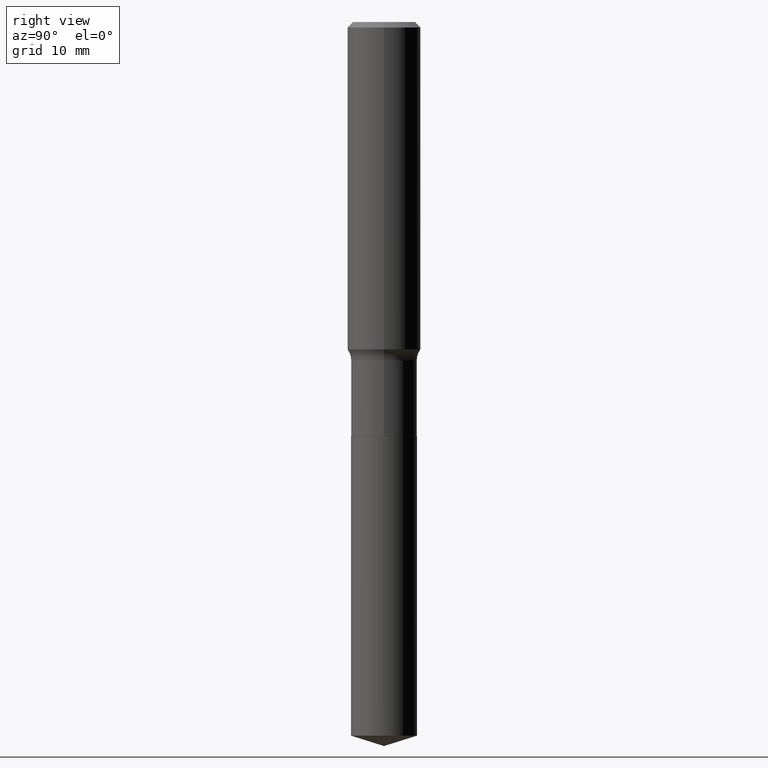
[diagram: clean part render]
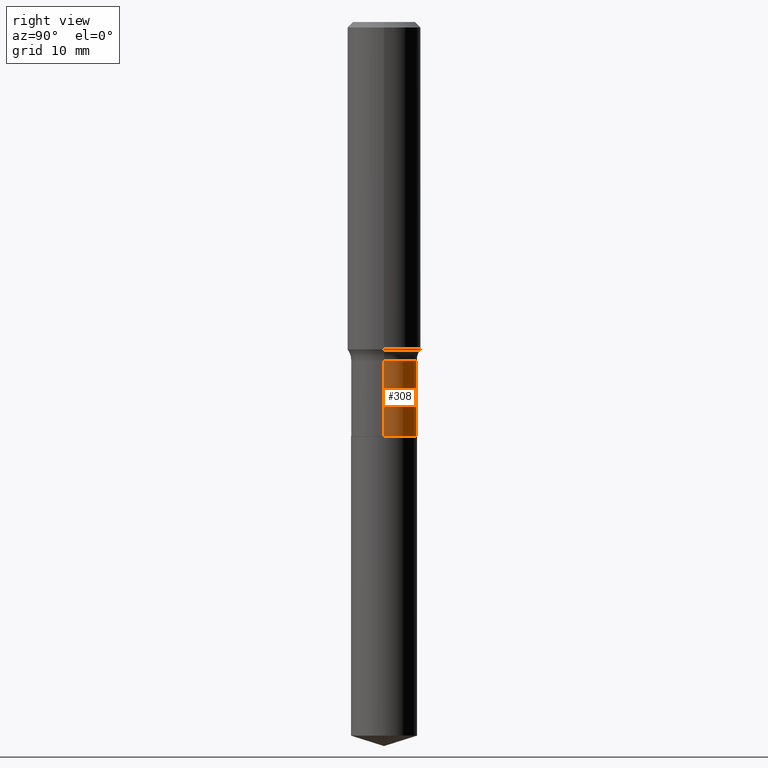
[diagram: same view with one face highlighted and labeled with its STEP entity id]
A machine part, right view. The second image highlights one B-rep face of the part: STEP entity #308.
In plain terms, the highlighted cylindrical surface (edge-blend (fillet) strip) has radius 3.6004 mm, axis along (-0, 0, 1).
Its self-contained STEP definition (entity closure, byte-faithful):
#6 = VERTEX_POINT ( 'NONE', #63 ) ;
#15 = AXIS2_PLACEMENT_3D ( 'NONE', #425, #279, #432 ) ;
#25 = DIRECTION ( 'NONE',  ( -2.445468806185136597E-29, 3.491481338843145583E-15, 1.000000000000000000 ) ) ;
#39 = CARTESIAN_POINT ( 'NONE',  ( 0.000000000000000000, 0.000000000000000000, 0.000000000000000000 ) ) ;
#63 = CARTESIAN_POINT ( 'NONE',  ( 0.1417499999999999594, -6.064703085570540056E-15, -1.453500000000000014 ) ) ;
#75 = DIRECTION ( 'NONE',  ( 1.000000000000000000, -6.982962677686266711E-15, 4.876176775795935793E-29 ) ) ;
#79 = ORIENTED_EDGE ( 'NONE', *, *, #430, .T. ) ;
#95 = VERTEX_POINT ( 'NONE', #256 ) ;
#109 = CIRCLE ( 'NONE', #338, 0.1417499999999999594 ) ;
#132 = LINE ( 'NONE', #275, #429 ) ;
#139 = EDGE_CURVE ( 'NONE', #6, #95, #109, .T. ) ;
#148 = ORIENTED_EDGE ( 'NONE', *, *, #139, .F. ) ;
#155 = DIRECTION ( 'NONE',  ( -2.445468806185136877E-29, 3.491481338843145188E-15, 1.000000000000000000 ) ) ;
#174 = EDGE_CURVE ( 'NONE', #414, #95, #413, .T. ) ;
#180 = DIRECTION ( 'NONE',  ( 1.000000000000000000, -6.982962677686268288E-15, 0.000000000000000000 ) ) ;
#256 = CARTESIAN_POINT ( 'NONE',  ( -0.1417499999999999594, -4.635912385965292401E-15, -1.453500000000000014 ) ) ;
#261 = CYLINDRICAL_SURFACE ( 'NONE', #424, 0.1417499999999999594 ) ;
#271 = FACE_OUTER_BOUND ( 'NONE', #455, .T. ) ;
#275 = CARTESIAN_POINT ( 'NONE',  ( 0.1417499999999999594, -9.898349595620280222E-16, 6.911980579690737389E-30 ) ) ;
#278 = CIRCLE ( 'NONE', #15, 0.1417499999999999594 ) ;
#279 = DIRECTION ( 'NONE',  ( -2.445468806185136597E-29, 3.491481338843145583E-15, 1.000000000000000000 ) ) ;
#308 = ADVANCED_FACE ( 'NONE', ( #271 ), #261, .T. ) ;
#338 = AXIS2_PLACEMENT_3D ( 'NONE', #410, #25, #180 ) ;
#341 = VECTOR ( 'NONE', #155, 39.37007874015748143 ) ;
#351 = CARTESIAN_POINT ( 'NONE',  ( -0.1417499999999999594, 1.007194327939941725E-15, -6.972590490436327745E-30 ) ) ;
#376 = VERTEX_POINT ( 'NONE', #462 ) ;
#387 = CARTESIAN_POINT ( 'NONE',  ( -0.1417499999999999594, -4.635912385965292401E-15, -1.779000000000000137 ) ) ;
#399 = EDGE_CURVE ( 'NONE', #376, #6, #132, .T. ) ;
#410 = CARTESIAN_POINT ( 'NONE',  ( 3.554488909790095658E-29, -5.074868126008511245E-15, -1.453500000000000014 ) ) ;
#413 = LINE ( 'NONE', #351, #341 ) ;
#414 = VERTEX_POINT ( 'NONE', #387 ) ;
#422 = DIRECTION ( 'NONE',  ( -2.445468806185136597E-29, 3.491481338843145583E-15, 1.000000000000000000 ) ) ;
#424 = AXIS2_PLACEMENT_3D ( 'NONE', #39, #422, #75 ) ;
#425 = CARTESIAN_POINT ( 'NONE',  ( 4.350489006203358077E-29, -6.211345301801956611E-15, -1.779000000000000137 ) ) ;
#429 = VECTOR ( 'NONE', #467, 39.37007874015748143 ) ;
#430 = EDGE_CURVE ( 'NONE', #376, #414, #278, .T. ) ;
#432 = DIRECTION ( 'NONE',  ( 1.000000000000000000, -6.982962677686268288E-15, 0.000000000000000000 ) ) ;
#449 = ORIENTED_EDGE ( 'NONE', *, *, #399, .F. ) ;
#455 = EDGE_LOOP ( 'NONE', ( #79, #478, #148, #449 ) ) ;
#462 = CARTESIAN_POINT ( 'NONE',  ( 0.1417499999999999594, -7.201180261363985422E-15, -1.779000000000000137 ) ) ;
#467 = DIRECTION ( 'NONE',  ( -2.445468806185136877E-29, 3.491481338843145188E-15, 1.000000000000000000 ) ) ;
#478 = ORIENTED_EDGE ( 'NONE', *, *, #174, .T. ) ;